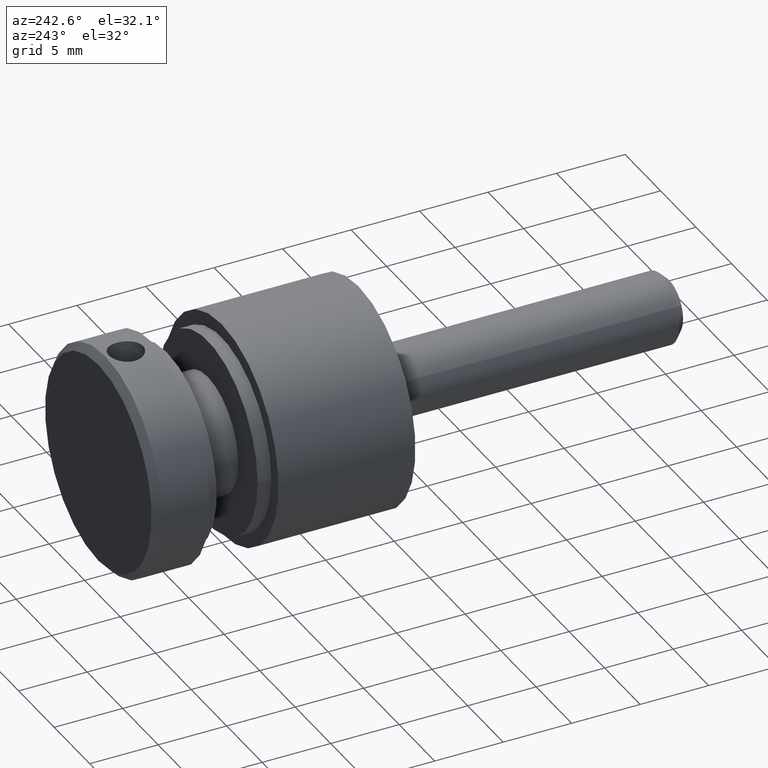
[diagram: clean part render]
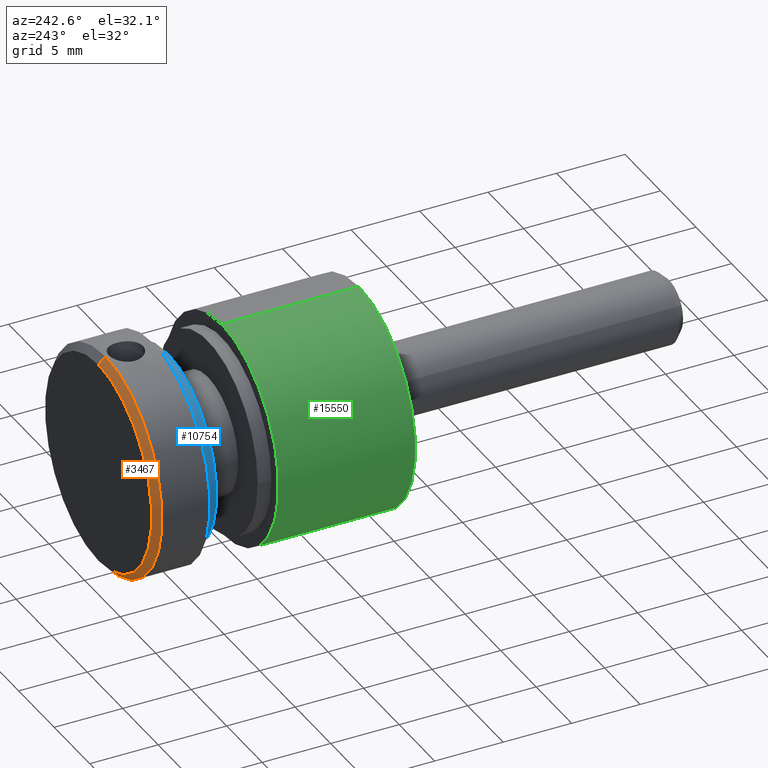
[diagram: same view with three faces highlighted in distinct colors, each labeled with its STEP entity id]
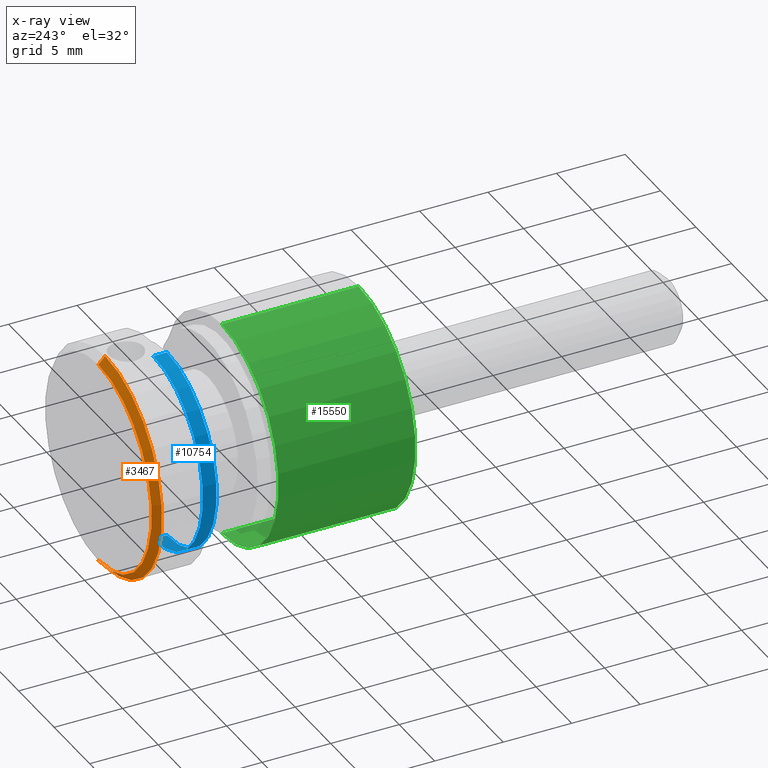
[diagram: x-ray of the same camera — body ghosted, the three highlighted faces saturated]
A machine part, auxiliary view with three faces highlighted in distinct colors.
The next image is the same camera in x-ray (body ghosted, the three faces saturated) — at least one of them is partly hidden behind the body in this view.
Their STEP definitions:

[orange] entity #3467 — the highlighted conical surface has half-angle 45 deg.
#387 = DIRECTION ( 'NONE',  ( 0.000000000000000000, 0.000000000000000000, -1.000000000000000000 ) ) ;
#965 = ORIENTED_EDGE ( 'NONE', *, *, #4261, .F. ) ;
#1541 = DIRECTION ( 'NONE',  ( 0.000000000000000000, -0.7071067811865463515, -0.7071067811865487940 ) ) ;
#2192 = AXIS2_PLACEMENT_3D ( 'NONE', #12264, #6901, #387 ) ;
#2204 = VECTOR ( 'NONE', #1541, 1000.000000000000000 ) ;
#2333 = VERTEX_POINT ( 'NONE', #2403 ) ;
#2403 = CARTESIAN_POINT ( 'NONE',  ( 0.000000000000000000, 3.500000000000001332, -8.000000000000000000 ) ) ;
#2521 = FACE_OUTER_BOUND ( 'NONE', #8603, .T. ) ;
#2539 = ORIENTED_EDGE ( 'NONE', *, *, #11484, .F. ) ;
#2597 = CIRCLE ( 'NONE', #7782, 8.000000000000000000 ) ;
#2616 = LINE ( 'NONE', #6081, #13985 ) ;
#3134 = CARTESIAN_POINT ( 'NONE',  ( 0.000000000000000000, 3.500000000000001332, -8.000000000000000000 ) ) ;
#3368 = CARTESIAN_POINT ( 'NONE',  ( 0.000000000000000000, 3.500000000000001332, 0.000000000000000000 ) ) ;
#3467 = ADVANCED_FACE ( 'NONE', ( #2521 ), #12834, .T. ) ;
#3626 = DIRECTION ( 'NONE',  ( 8.659560562354950115E-17, -0.7071067811865463515, 0.7071067811865487940 ) ) ;
#4261 = EDGE_CURVE ( 'NONE', #5815, #14955, #15538, .T. ) ;
#4715 = DIRECTION ( 'NONE',  ( 0.000000000000000000, 0.000000000000000000, 1.000000000000000000 ) ) ;
#5815 = VERTEX_POINT ( 'NONE', #9450 ) ;
#6081 = CARTESIAN_POINT ( 'NONE',  ( 9.797174393178825657E-16, 3.500000000000001332, 8.000000000000000000 ) ) ;
#6901 = DIRECTION ( 'NONE',  ( -0.000000000000000000, -1.000000000000000000, -0.000000000000000000 ) ) ;
#7620 = DIRECTION ( 'NONE',  ( 0.000000000000000000, 1.000000000000000000, 0.000000000000000000 ) ) ;
#7646 = CARTESIAN_POINT ( 'NONE',  ( 9.797174393178825657E-16, 3.500000000000001332, 8.000000000000000000 ) ) ;
#7782 = AXIS2_PLACEMENT_3D ( 'NONE', #3368, #12737, #4715 ) ;
#8603 = EDGE_LOOP ( 'NONE', ( #2539, #965, #14010, #11193 ) ) ;
#8888 = VERTEX_POINT ( 'NONE', #7646 ) ;
#8994 = DIRECTION ( 'NONE',  ( 0.000000000000000000, 0.000000000000000000, 1.000000000000000000 ) ) ;
#9450 = CARTESIAN_POINT ( 'NONE',  ( 0.000000000000000000, 4.000000000000000000, -7.500000000000000000 ) ) ;
#10377 = CARTESIAN_POINT ( 'NONE',  ( 0.000000000000000000, 4.000000000000000000, 0.000000000000000000 ) ) ;
#11193 = ORIENTED_EDGE ( 'NONE', *, *, #16887, .F. ) ;
#11484 = EDGE_CURVE ( 'NONE', #14955, #8888, #2616, .T. ) ;
#12264 = CARTESIAN_POINT ( 'NONE',  ( 0.000000000000000000, 3.500000000000001332, 0.000000000000000000 ) ) ;
#12737 = DIRECTION ( 'NONE',  ( -0.000000000000000000, -1.000000000000000000, -0.000000000000000000 ) ) ;
#12834 = CONICAL_SURFACE ( 'NONE', #2192, 8.000000000000000000, 0.7853981633974500554 ) ;
#12939 = LINE ( 'NONE', #3134, #2204 ) ;
#13985 = VECTOR ( 'NONE', #3626, 1000.000000000000000 ) ;
#14010 = ORIENTED_EDGE ( 'NONE', *, *, #17038, .T. ) ;
#14561 = CARTESIAN_POINT ( 'NONE',  ( 9.491012693391985815E-16, 4.000000000000000000, 7.500000000000000000 ) ) ;
#14955 = VERTEX_POINT ( 'NONE', #14561 ) ;
#15538 = CIRCLE ( 'NONE', #16258, 7.500000000000000000 ) ;
#16258 = AXIS2_PLACEMENT_3D ( 'NONE', #10377, #7620, #8994 ) ;
#16887 = EDGE_CURVE ( 'NONE', #8888, #2333, #2597, .T. ) ;
#17038 = EDGE_CURVE ( 'NONE', #5815, #2333, #12939, .T. ) ;

[blue] entity #10754 — the highlighted cylindrical surface (partial cylindrical patch) has radius 7 mm, axis along (-0, -1, -0).
#1790 = VERTEX_POINT ( 'NONE', #3469 ) ;
#1806 = AXIS2_PLACEMENT_3D ( 'NONE', #16588, #8563, #5937 ) ;
#2234 = DIRECTION ( 'NONE',  ( 0.000000000000000000, 0.000000000000000000, -1.000000000000000000 ) ) ;
#3273 = DIRECTION ( 'NONE',  ( -0.000000000000000000, -1.000000000000000000, -0.000000000000000000 ) ) ;
#3469 = CARTESIAN_POINT ( 'NONE',  ( 8.572527594031473190E-16, 2.000000000000000000, 7.000000000000000000 ) ) ;
#3591 = ORIENTED_EDGE ( 'NONE', *, *, #11578, .F. ) ;
#3780 = VERTEX_POINT ( 'NONE', #7803 ) ;
#3934 = ORIENTED_EDGE ( 'NONE', *, *, #7583, .T. ) ;
#4682 = LINE ( 'NONE', #13584, #15865 ) ;
#4712 = CYLINDRICAL_SURFACE ( 'NONE', #16182, 7.000000000000000000 ) ;
#4975 = CARTESIAN_POINT ( 'NONE',  ( 0.000000000000000000, 1.000000000000000000, 0.000000000000000000 ) ) ;
#5593 = VECTOR ( 'NONE', #3273, 1000.000000000000000 ) ;
#5597 = EDGE_LOOP ( 'NONE', ( #15819, #11013, #3934, #3591 ) ) ;
#5937 = DIRECTION ( 'NONE',  ( 0.000000000000000000, 0.000000000000000000, -1.000000000000000000 ) ) ;
#5955 = DIRECTION ( 'NONE',  ( -0.000000000000000000, -1.000000000000000000, -0.000000000000000000 ) ) ;
#6744 = DIRECTION ( 'NONE',  ( -0.000000000000000000, -1.000000000000000000, -0.000000000000000000 ) ) ;
#7583 = EDGE_CURVE ( 'NONE', #3780, #7622, #9219, .T. ) ;
#7622 = VERTEX_POINT ( 'NONE', #12517 ) ;
#7803 = CARTESIAN_POINT ( 'NONE',  ( 0.000000000000000000, 2.000000000000000000, -7.000000000000000000 ) ) ;
#8319 = FACE_OUTER_BOUND ( 'NONE', #5597, .T. ) ;
#8563 = DIRECTION ( 'NONE',  ( -0.000000000000000000, -1.000000000000000000, -0.000000000000000000 ) ) ;
#9219 = LINE ( 'NONE', #10911, #5593 ) ;
#10337 = CARTESIAN_POINT ( 'NONE',  ( 8.572527594031473190E-16, 1.000000000000000000, 7.000000000000000000 ) ) ;
#10754 = ADVANCED_FACE ( 'NONE', ( #8319 ), #4712, .T. ) ;
#10911 = CARTESIAN_POINT ( 'NONE',  ( 0.000000000000000000, -2.000000000000000000, -7.000000000000000000 ) ) ;
#11013 = ORIENTED_EDGE ( 'NONE', *, *, #15969, .T. ) ;
#11578 = EDGE_CURVE ( 'NONE', #14839, #7622, #15882, .T. ) ;
#12349 = AXIS2_PLACEMENT_3D ( 'NONE', #4975, #17042, #2234 ) ;
#12517 = CARTESIAN_POINT ( 'NONE',  ( 0.000000000000000000, 1.000000000000000000, -7.000000000000000000 ) ) ;
#12682 = DIRECTION ( 'NONE',  ( 0.000000000000000000, 0.000000000000000000, -1.000000000000000000 ) ) ;
#13584 = CARTESIAN_POINT ( 'NONE',  ( 8.572527594031473190E-16, -2.000000000000000000, 7.000000000000000000 ) ) ;
#14839 = VERTEX_POINT ( 'NONE', #10337 ) ;
#14993 = CIRCLE ( 'NONE', #1806, 7.000000000000000000 ) ;
#15373 = CARTESIAN_POINT ( 'NONE',  ( 0.000000000000000000, -2.000000000000000000, 0.000000000000000000 ) ) ;
#15819 = ORIENTED_EDGE ( 'NONE', *, *, #16196, .F. ) ;
#15865 = VECTOR ( 'NONE', #6744, 1000.000000000000000 ) ;
#15882 = CIRCLE ( 'NONE', #12349, 7.000000000000000000 ) ;
#15969 = EDGE_CURVE ( 'NONE', #1790, #3780, #14993, .T. ) ;
#16182 = AXIS2_PLACEMENT_3D ( 'NONE', #15373, #5955, #12682 ) ;
#16196 = EDGE_CURVE ( 'NONE', #1790, #14839, #4682, .T. ) ;
#16588 = CARTESIAN_POINT ( 'NONE',  ( 0.000000000000000000, 2.000000000000000000, 0.000000000000000000 ) ) ;
#17042 = DIRECTION ( 'NONE',  ( -0.000000000000000000, -1.000000000000000000, -0.000000000000000000 ) ) ;

[green] entity #15550 — the highlighted cylindrical surface (partial cylindrical patch) has radius 8 mm, axis along (-0, -1, -0).
#1519 = DIRECTION ( 'NONE',  ( -0.000000000000000000, -1.000000000000000000, -0.000000000000000000 ) ) ;
#1911 = ORIENTED_EDGE ( 'NONE', *, *, #14460, .F. ) ;
#2145 = AXIS2_PLACEMENT_3D ( 'NONE', #16648, #11304, #3246 ) ;
#3067 = VERTEX_POINT ( 'NONE', #7437 ) ;
#3078 = CYLINDRICAL_SURFACE ( 'NONE', #7287, 8.000000000000000000 ) ;
#3246 = DIRECTION ( 'NONE',  ( 0.000000000000000000, 0.000000000000000000, -1.000000000000000000 ) ) ;
#3290 = CIRCLE ( 'NONE', #9142, 8.000000000000000000 ) ;
#4437 = DIRECTION ( 'NONE',  ( 0.000000000000000000, 0.000000000000000000, -1.000000000000000000 ) ) ;
#4482 = CIRCLE ( 'NONE', #2145, 8.000000000000000000 ) ;
#5207 = VERTEX_POINT ( 'NONE', #10352 ) ;
#6115 = CARTESIAN_POINT ( 'NONE',  ( 9.797174393178825657E-16, -4.999999999999999112, 8.000000000000000000 ) ) ;
#6603 = VERTEX_POINT ( 'NONE', #15247 ) ;
#7254 = CARTESIAN_POINT ( 'NONE',  ( 0.000000000000000000, 5.000000000000000000, 0.000000000000000000 ) ) ;
#7287 = AXIS2_PLACEMENT_3D ( 'NONE', #8236, #1519, #12407 ) ;
#7437 = CARTESIAN_POINT ( 'NONE',  ( 0.000000000000000000, -4.999999999999999112, -8.000000000000000000 ) ) ;
#7911 = EDGE_CURVE ( 'NONE', #7991, #3067, #11071, .T. ) ;
#7991 = VERTEX_POINT ( 'NONE', #14776 ) ;
#8027 = FACE_OUTER_BOUND ( 'NONE', #14128, .T. ) ;
#8236 = CARTESIAN_POINT ( 'NONE',  ( 0.000000000000000000, -4.999999999999999112, 0.000000000000000000 ) ) ;
#8499 = ORIENTED_EDGE ( 'NONE', *, *, #15989, .F. ) ;
#9142 = AXIS2_PLACEMENT_3D ( 'NONE', #7254, #12565, #4437 ) ;
#9497 = DIRECTION ( 'NONE',  ( -0.000000000000000000, -1.000000000000000000, -0.000000000000000000 ) ) ;
#10352 = CARTESIAN_POINT ( 'NONE',  ( 9.797174393178825657E-16, -4.999999999999999112, 8.000000000000000000 ) ) ;
#11071 = LINE ( 'NONE', #12137, #13208 ) ;
#11119 = ORIENTED_EDGE ( 'NONE', *, *, #15763, .T. ) ;
#11304 = DIRECTION ( 'NONE',  ( -0.000000000000000000, -1.000000000000000000, -0.000000000000000000 ) ) ;
#11947 = DIRECTION ( 'NONE',  ( -0.000000000000000000, -1.000000000000000000, -0.000000000000000000 ) ) ;
#12137 = CARTESIAN_POINT ( 'NONE',  ( 0.000000000000000000, -4.999999999999999112, -8.000000000000000000 ) ) ;
#12359 = ORIENTED_EDGE ( 'NONE', *, *, #7911, .T. ) ;
#12407 = DIRECTION ( 'NONE',  ( 0.000000000000000000, 0.000000000000000000, -1.000000000000000000 ) ) ;
#12565 = DIRECTION ( 'NONE',  ( -0.000000000000000000, -1.000000000000000000, -0.000000000000000000 ) ) ;
#13208 = VECTOR ( 'NONE', #9497, 1000.000000000000000 ) ;
#13511 = LINE ( 'NONE', #6115, #17294 ) ;
#14128 = EDGE_LOOP ( 'NONE', ( #1911, #11119, #12359, #8499 ) ) ;
#14460 = EDGE_CURVE ( 'NONE', #6603, #5207, #13511, .T. ) ;
#14776 = CARTESIAN_POINT ( 'NONE',  ( 0.000000000000000000, 5.000000000000000000, -8.000000000000000000 ) ) ;
#15247 = CARTESIAN_POINT ( 'NONE',  ( 9.797174393178825657E-16, 5.000000000000000000, 8.000000000000000000 ) ) ;
#15550 = ADVANCED_FACE ( 'NONE', ( #8027 ), #3078, .T. ) ;
#15763 = EDGE_CURVE ( 'NONE', #6603, #7991, #3290, .T. ) ;
#15989 = EDGE_CURVE ( 'NONE', #5207, #3067, #4482, .T. ) ;
#16648 = CARTESIAN_POINT ( 'NONE',  ( 0.000000000000000000, -4.999999999999999112, 0.000000000000000000 ) ) ;
#17294 = VECTOR ( 'NONE', #11947, 1000.000000000000000 ) ;